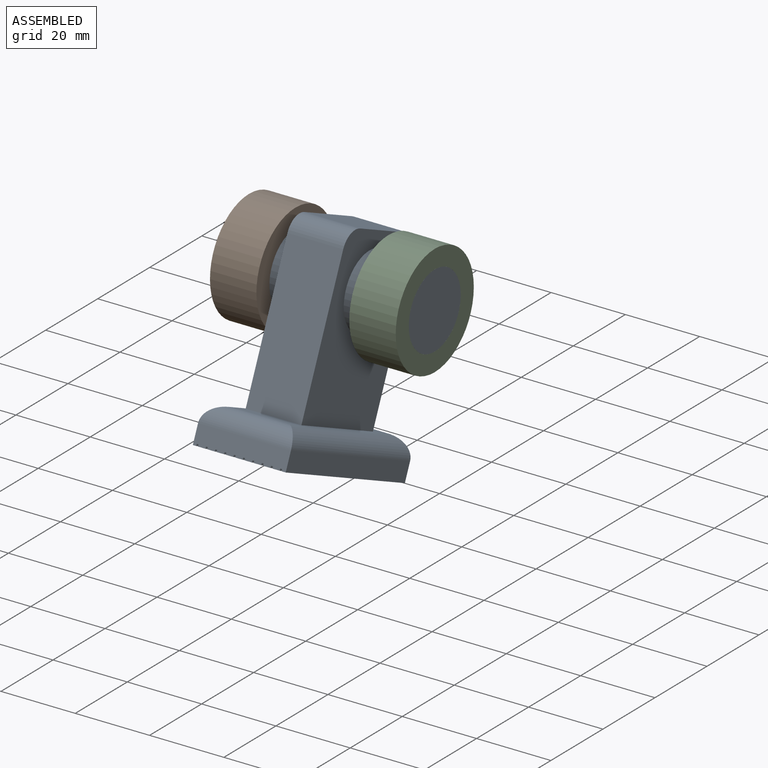
[diagram: assembled view]
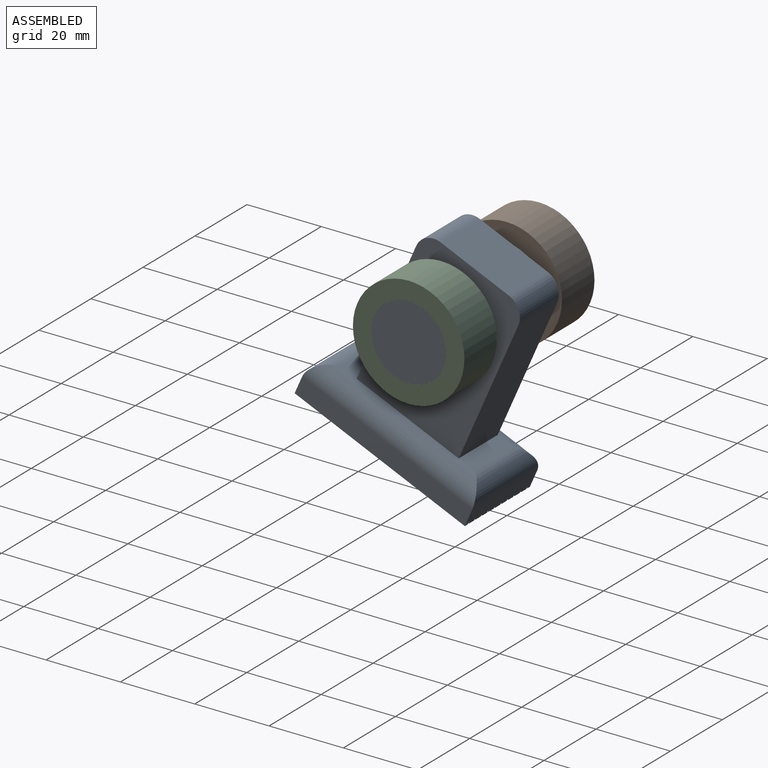
[diagram: assembled view, second angle]
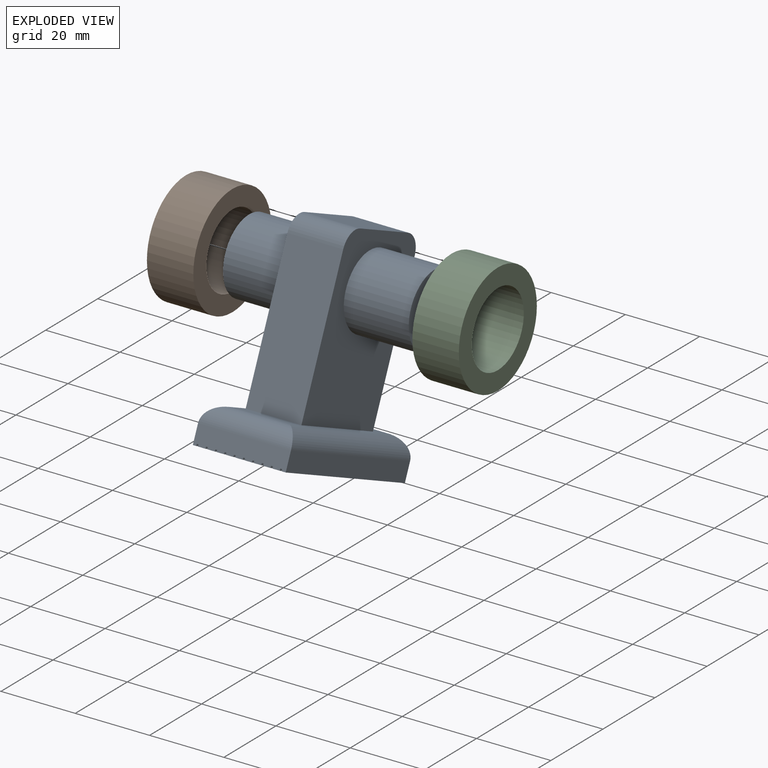
[diagram: exploded view]
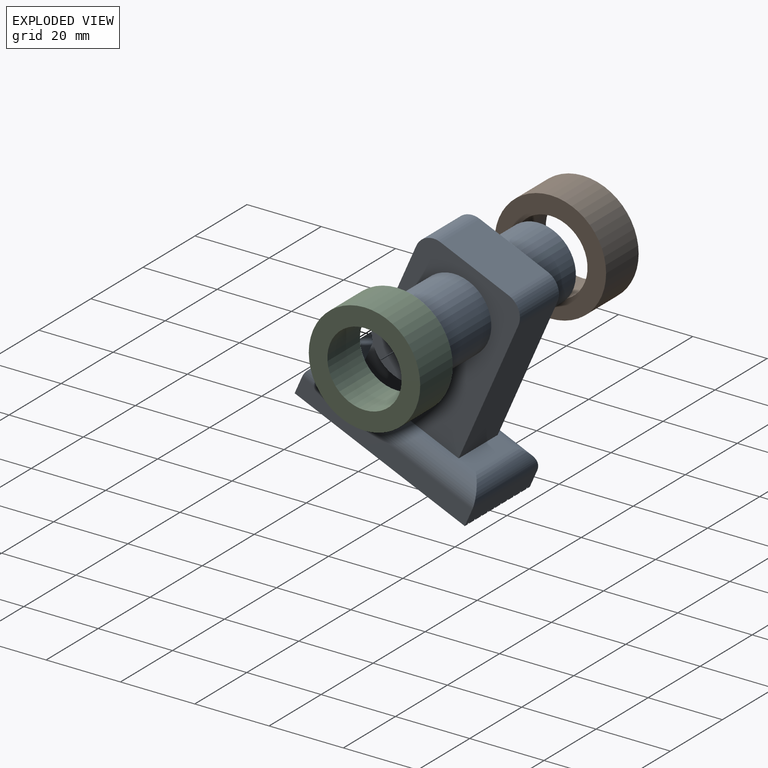
[diagram: exploded view, second angle]
ASSEMBLY  parts=3 mates=2
PART A: 62 faces, bbox 50x50x55 mm
  f0: plane 25x5mm, normal (0,1,0), area 122.5mm2, adj f1,f2,f3,f4,f5,f6,f7,f8
  f1: plane 50x2mm, normal (0,0,-1), area 100mm2, adj f0,f22,f58,f60
  f2: plane 50x2mm, normal (0,0,-1), area 100mm2, adj f0,f22,f55,f57
  f3: plane 50x2mm, normal (0,0,-1), area 100mm2, adj f0,f22,f52,f54
  f4: plane 50x2mm, normal (0,0,-1), area 100mm2, adj f0,f22,f49,f51
  f5: plane 50x2mm, normal (0,0,-1), area 100mm2, adj f0,f22,f46,f48
  f6: plane 50x2mm, normal (0,0,-1), area 100mm2, adj f0,f22,f43,f45
  f7: plane 50x2mm, normal (0,0,-1), area 100mm2, adj f0,f22,f40,f42
  f8: plane 50x2mm, normal (0,0,-1), area 100mm2, adj f0,f22,f37,f39
  f9: plane 50x2mm, normal (0,0,-1), area 100mm2, adj f0,f22,f34,f36
  f10: plane 50x0.91mm, normal (0,0,-1), area 45.4mm2, adj f0,f22,f25,f33
  f11: plane 15x5mm, normal (0,0,1), area 75mm2, adj f14,f26,f27,f28
  f12: plane 45x30mm, normal (-1,0,0), area 1025.1mm2, adj f14,f15,f16,f18,f28,f30,f31
  f13: plane 45x30mm, normal (1,0,0), area 1025.1mm2, adj f14,f15,f18,f20,f27,f30,f31
  f14: plane 40x15mm, normal (0,-1,0), area 600mm2, adj f11,f12,f13,f31
  f15: plane 40x15mm, normal (0,1,0), area 600mm2, adj f12,f13,f21,f30
  f16: cylinder r=10mm len=20mm, axis (-1,0,0), area 1099.6mm2, adj f12,f17
  f17: plane 20x20mm, normal (-1,0,0), area 314.2mm2, adj f16
  f18: plane 20x15mm, normal (0,0,1), area 300mm2, adj f12,f13,f30,f31
  f19: plane 20x20mm, normal (1,0,0), area 314.2mm2, adj f20
  f20: cylinder r=10mm len=20mm, axis (-1,0,0), area 1099.6mm2, adj f13,f19
  f21: plane 15x5mm, normal (0,0,1), area 75mm2, adj f15,f27,f28,f29
  f22: plane 25x5mm, normal (0,-1,0), area 122.5mm2, adj f1,f2,f3,f4,f5,f6,f7,f8
  f23: plane 50x1.09mm, normal (0,0,-1), area 54.6mm2, adj f0,f22,f24,f61
  f24: plane 50x5mm, normal (1,0,0), area 250mm2, adj f0,f22,f23,f27
  f25: plane 50x5mm, normal (-1,0,0), area 250mm2, adj f0,f10,f22,f28
  f26: cylinder r=5mm len=25mm, axis (-1,0,0), area 167.8mm2, adj f11,f22,f27,f28
  f27: cylinder r=5mm len=50mm, axis (0,1,0), area 364.2mm2, adj f11,f13,f21,f24,f26,f29
  f28: cylinder r=5mm len=50mm, axis (0,-1,0), area 364.2mm2, adj f11,f12,f21,f25,f26,f29
  f29: cylinder r=5mm len=25mm, axis (1,0,0), area 167.8mm2, adj f0,f21,f27,f28
  f30: cylinder r=5mm len=15mm, axis (-1,0,0), area 117.8mm2, adj f12,f13,f15,f18
  f31: cylinder r=5mm len=15mm, axis (1,0,0), area 117.8mm2, adj f12,f13,f14,f18
  f32: plane 50x0.5mm, normal (0,0,-1), area 25mm2, adj f0,f22,f33,f34
  f33: plane 50x0.5mm, normal (1,0,0), area 25mm2, adj f0,f10,f22,f32
  f34: plane 50x0.5mm, normal (-1,0,0), area 25mm2, adj f0,f9,f22,f32
  f35: plane 50x0.5mm, normal (0,0,-1), area 25mm2, adj f0,f22,f36,f37
  f36: plane 50x0.5mm, normal (1,0,0), area 25mm2, adj f0,f9,f22,f35
  f37: plane 50x0.5mm, normal (-1,0,0), area 25mm2, adj f0,f8,f22,f35
  f38: plane 50x0.5mm, normal (0,0,-1), area 25mm2, adj f0,f22,f39,f40
  f39: plane 50x0.5mm, normal (1,0,0), area 25mm2, adj f0,f8,f22,f38
  f40: plane 50x0.5mm, normal (-1,0,0), area 25mm2, adj f0,f7,f22,f38
  f41: plane 50x0.5mm, normal (0,0,-1), area 25mm2, adj f0,f22,f42,f43
  f42: plane 50x0.5mm, normal (1,0,0), area 25mm2, adj f0,f7,f22,f41
  f43: plane 50x0.5mm, normal (-1,0,0), area 25mm2, adj f0,f6,f22,f41
  f44: plane 50x0.5mm, normal (0,0,-1), area 25mm2, adj f0,f22,f45,f46
  f45: plane 50x0.5mm, normal (1,0,0), area 25mm2, adj f0,f6,f22,f44
  f46: plane 50x0.5mm, normal (-1,0,0), area 25mm2, adj f0,f5,f22,f44
  f47: plane 50x0.5mm, normal (0,0,-1), area 25mm2, adj f0,f22,f48,f49
  f48: plane 50x0.5mm, normal (1,0,0), area 25mm2, adj f0,f5,f22,f47
  f49: plane 50x0.5mm, normal (-1,0,0), area 25mm2, adj f0,f4,f22,f47
  f50: plane 50x0.5mm, normal (0,0,-1), area 25mm2, adj f0,f22,f51,f52
  f51: plane 50x0.5mm, normal (1,0,0), area 25mm2, adj f0,f4,f22,f50
  f52: plane 50x0.5mm, normal (-1,0,0), area 25mm2, adj f0,f3,f22,f50
  f53: plane 50x0.5mm, normal (0,0,-1), area 25mm2, adj f0,f22,f54,f55
  f54: plane 50x0.5mm, normal (1,0,0), area 25mm2, adj f0,f3,f22,f53
  f55: plane 50x0.5mm, normal (-1,0,0), area 25mm2, adj f0,f2,f22,f53
  f56: plane 50x0.5mm, normal (0,0,-1), area 25mm2, adj f0,f22,f57,f58
  f57: plane 50x0.5mm, normal (1,0,0), area 25mm2, adj f0,f2,f22,f56
  f58: plane 50x0.5mm, normal (-1,0,0), area 25mm2, adj f0,f1,f22,f56
  f59: plane 50x0.5mm, normal (0,0,-1), area 25mm2, adj f0,f22,f60,f61
  f60: plane 50x0.5mm, normal (1,0,0), area 25mm2, adj f0,f1,f22,f59
  f61: plane 50x0.5mm, normal (-1,0,0), area 25mm2, adj f0,f22,f23,f59
PART B: 4 faces, bbox 12.5x30x30 mm
  f0: cylinder r=15mm len=30mm, axis (-1,0,0), area 1178.1mm2, adj f1,f2
  f1: plane 30x30mm, normal (-1,0,0), area 392.7mm2, adj f0,f3
  f2: plane 30x30mm, normal (1,0,0), area 392.7mm2, adj f0,f3
  f3: cylinder r=10mm len=20mm, axis (1,0,0), area 785.4mm2, adj f1,f2
PART C: 4 faces, bbox 12.5x30x30 mm
  f0: plane 30x30mm, normal (1,0,0), area 392.7mm2, adj f1,f3
  f1: cylinder r=15mm len=30mm, axis (-1,0,0), area 1178.1mm2, adj f0,f2
  f2: plane 30x30mm, normal (-1,0,0), area 392.7mm2, adj f1,f3
  f3: cylinder r=10mm len=20mm, axis (1,0,0), area 785.4mm2, adj f0,f2
PLACE A rot(axis=(-1,0,0),23.7deg) t=(0,11.06,15.42)mm
PLACE B t=(0,11.06,15.42)mm
PLACE C t=(0,11.06,15.42)mm fixed
MATE revolute A.f16 <-> C.f3  axis (1,0,0) through (25,11.06,15.42)mm
MATE revolute A.f16 <-> B.f0  axis (-1,0,0) through (-25,11.06,15.42)mm
